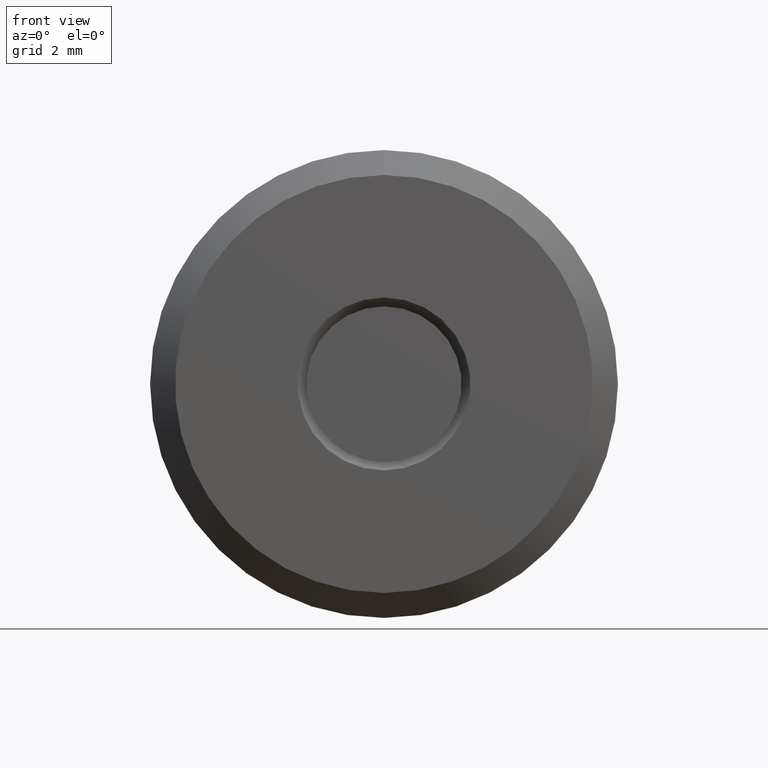
[diagram: clean part render]
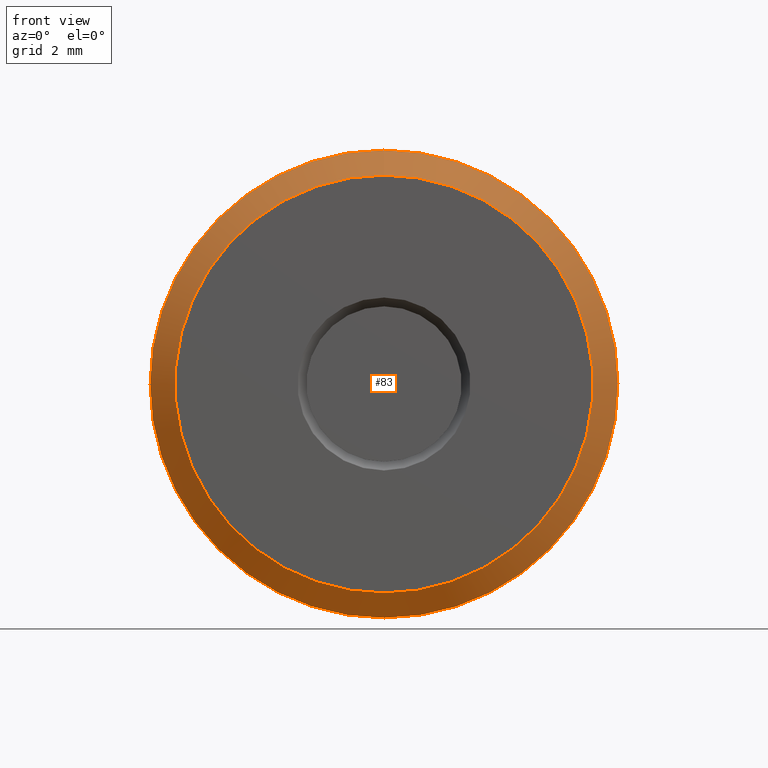
[diagram: same view with one face highlighted and labeled with its STEP entity id]
A machine part, front view. The second image highlights one B-rep face of the part: STEP entity #83.
In plain terms, the highlighted conical surface has half-angle 45 deg.
Its self-contained STEP definition (entity closure, byte-faithful):
#65 = CARTESIAN_POINT ( 'NONE',  ( 0.0000000000000000000, 0.02000000000000017400, 0.1875000000000000300 ) ) ;
#70 = DIRECTION ( 'NONE',  ( -0.0000000000000000000, 1.000000000000000000, -0.0000000000000000000 ) ) ;
#83 = ADVANCED_FACE ( 'NONE', ( #217, #197 ), #169, .T. ) ;
#86 = CARTESIAN_POINT ( 'NONE',  ( 0.0000000000000000000, -2.325607307416975900E-017, 0.0000000000000000000 ) ) ;
#108 = CARTESIAN_POINT ( 'NONE',  ( 0.0000000000000000000, 0.02000000000000017400, 0.0000000000000000000 ) ) ;
#145 = EDGE_CURVE ( 'NONE', #259, #259, #186, .T. ) ;
#164 = CIRCLE ( 'NONE', #338, 0.1675000000000000100 ) ;
#169 = CONICAL_SURFACE ( 'NONE', #267, 0.1875000000000000300, 0.7853981633974431700 ) ;
#186 = CIRCLE ( 'NONE', #540, 0.1875000000000000300 ) ;
#197 = FACE_OUTER_BOUND ( 'NONE', #269, .T. ) ;
#198 = DIRECTION ( 'NONE',  ( -0.0000000000000000000, 1.000000000000000000, -0.0000000000000000000 ) ) ;
#217 = FACE_BOUND ( 'NONE', #327, .T. ) ;
#223 = DIRECTION ( 'NONE',  ( 0.0000000000000000000, 0.0000000000000000000, 1.000000000000000000 ) ) ;
#259 = VERTEX_POINT ( 'NONE', #65 ) ;
#267 = AXIS2_PLACEMENT_3D ( 'NONE', #108, #198, #520 ) ;
#269 = EDGE_LOOP ( 'NONE', ( #495 ) ) ;
#321 = DIRECTION ( 'NONE',  ( 0.0000000000000000000, 0.0000000000000000000, 1.000000000000000000 ) ) ;
#327 = EDGE_LOOP ( 'NONE', ( #365 ) ) ;
#338 = AXIS2_PLACEMENT_3D ( 'NONE', #86, #484, #223 ) ;
#365 = ORIENTED_EDGE ( 'NONE', *, *, #536, .T. ) ;
#475 = CARTESIAN_POINT ( 'NONE',  ( 0.0000000000000000000, 0.02000000000000017400, 0.0000000000000000000 ) ) ;
#484 = DIRECTION ( 'NONE',  ( -0.0000000000000000000, 1.000000000000000000, -0.0000000000000000000 ) ) ;
#495 = ORIENTED_EDGE ( 'NONE', *, *, #145, .F. ) ;
#511 = VERTEX_POINT ( 'NONE', #525 ) ;
#520 = DIRECTION ( 'NONE',  ( 0.0000000000000000000, 0.0000000000000000000, 1.000000000000000000 ) ) ;
#525 = CARTESIAN_POINT ( 'NONE',  ( 0.0000000000000000000, -2.325607307416975900E-017, 0.1675000000000000100 ) ) ;
#536 = EDGE_CURVE ( 'NONE', #511, #511, #164, .T. ) ;
#540 = AXIS2_PLACEMENT_3D ( 'NONE', #475, #70, #321 ) ;